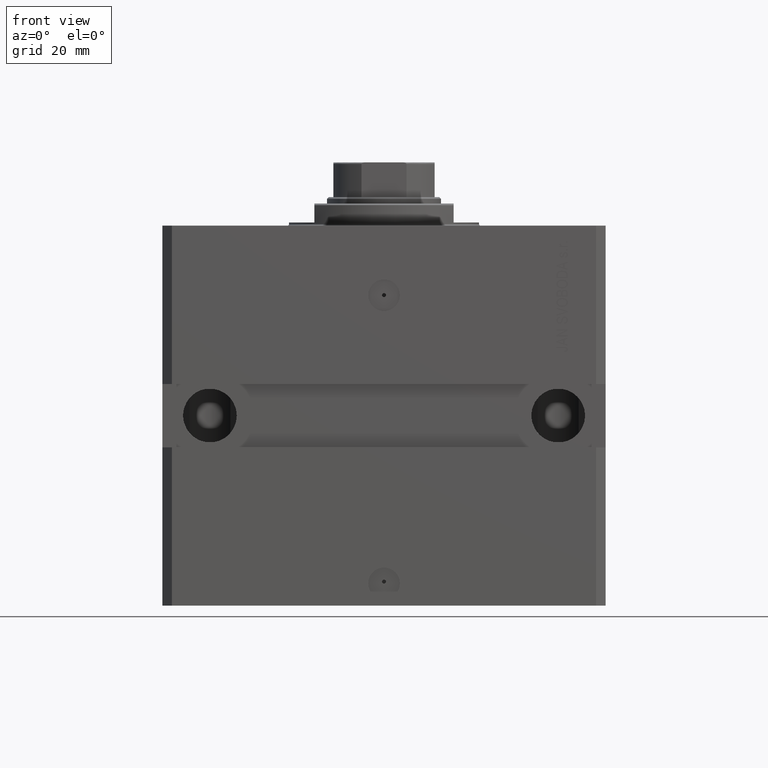
[diagram: clean part render]
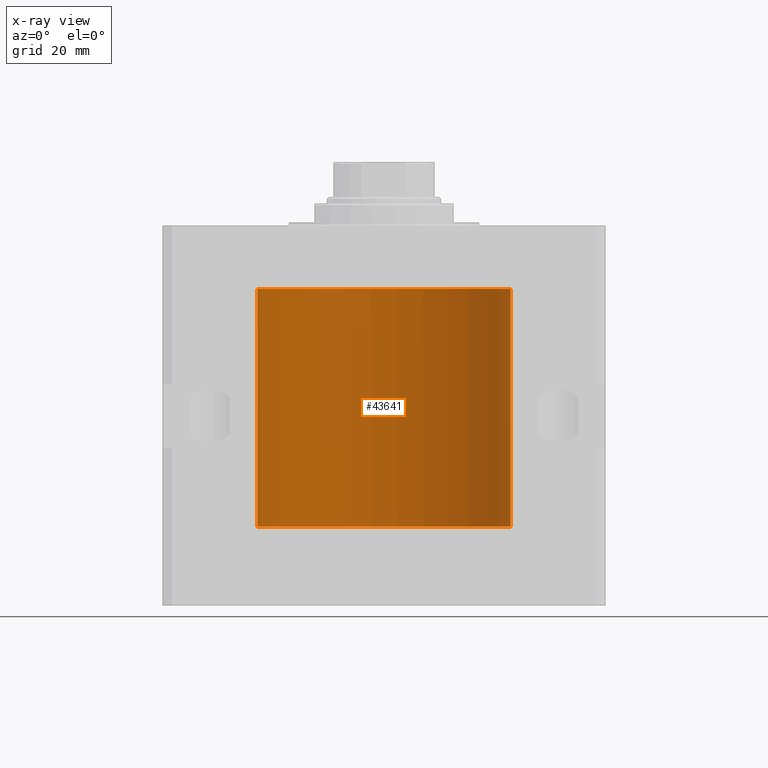
[diagram: x-ray — body ghosted, one internal face saturated and labeled with its STEP entity id]
A machine part, front view, then the same camera in x-ray: the body is ghosted and one INTERNAL B-rep face — a face not visible from any outside direction — is saturated and labeled: STEP entity #43641.
In plain terms, the highlighted cylindrical surface (partial cylindrical patch) has radius 40 mm, axis along (0, 0, 1).
Its self-contained STEP definition (entity closure, byte-faithful):
#165 = B_SPLINE_CURVE_WITH_KNOTS ( 'NONE', 3,
 ( #4626, #15990, #586, #37864, #4532, #41324 ),
 .UNSPECIFIED., .F., .F.,
 ( 4, 2, 4 ),
 ( 0.0009772540344090913447, 0.001465458787294959039, 0.001953663540180826733 ),
 .UNSPECIFIED. ) ;
#468 = ORIENTED_EDGE ( 'NONE', *, *, #33842, .T. ) ;
#586 = CARTESIAN_POINT ( 'NONE',  ( -39.99884891268878562, 0.3251103027878634033, -94.44131772510861822 ) ) ;
#1760 = ORIENTED_EDGE ( 'NONE', *, *, #47784, .F. ) ;
#1938 = CARTESIAN_POINT ( 'NONE',  ( -39.99973691478699322, 0.1636360998065314876, -34.39126145361714748 ) ) ;
#2078 = AXIS2_PLACEMENT_3D ( 'NONE', #47628, #43939, #29129 ) ;
#3256 = EDGE_LOOP ( 'NONE', ( #40471, #3946, #37030, #14263, #468, #1760, #8169 ) ) ;
#3946 = ORIENTED_EDGE ( 'NONE', *, *, #36492, .T. ) ;
#4532 = CARTESIAN_POINT ( 'NONE',  ( -39.99511688944039633, 0.6250000000000127676, -94.83492185971167032 ) ) ;
#4626 = CARTESIAN_POINT ( 'NONE',  ( -40.00000000000012790, 9.803334896741571174E-13, -94.37499999999168665 ) ) ;
#5304 = LINE ( 'NONE', #35407, #28836 ) ;
#8169 = ORIENTED_EDGE ( 'NONE', *, *, #36092, .T. ) ;
#8315 = FACE_OUTER_BOUND ( 'NONE', #3256, .T. ) ;
#8880 = CARTESIAN_POINT ( 'NONE',  ( -39.99628330279644928, 0.5573335244821722156, -34.67349122557948249 ) ) ;
#11124 = DIRECTION ( 'NONE',  ( -0.000000000000000000, -0.000000000000000000, 1.000000000000000000 ) ) ;
#12314 = CARTESIAN_POINT ( 'NONE',  ( -40.00000000000012790, 9.803334896741571174E-13, -94.37499999999168665 ) ) ;
#12792 = DIRECTION ( 'NONE',  ( 0.000000000000000000, 0.000000000000000000, 1.000000000000000000 ) ) ;
#12821 = CARTESIAN_POINT ( 'NONE',  ( -40.00000000000004974, 3.462873814982701370E-13, -35.62500000000321165 ) ) ;
#13077 = CARTESIAN_POINT ( 'NONE',  ( -39.99511688944039633, 0.6250000000000124345, -95.00000000000000000 ) ) ;
#14263 = ORIENTED_EDGE ( 'NONE', *, *, #43242, .T. ) ;
#14648 = VERTEX_POINT ( 'NONE', #21282 ) ;
#15990 = CARTESIAN_POINT ( 'NONE',  ( -39.99999999999998579, 0.1629608811977192317, -94.37500000000035527 ) ) ;
#17009 = CARTESIAN_POINT ( 'NONE',  ( -39.99999999999999289, 0.1631654129523948116, -35.62499999999986500 ) ) ;
#17346 = VERTEX_POINT ( 'NONE', #12314 ) ;
#18590 = LINE ( 'NONE', #40536, #43475 ) ;
#19404 = DIRECTION ( 'NONE',  ( -0.000000000000000000, -0.000000000000000000, 1.000000000000000000 ) ) ;
#19441 = CARTESIAN_POINT ( 'NONE',  ( -40.00000000000000000, 4.898587196589413026E-15, -20.00000000000000355 ) ) ;
#20467 = CARTESIAN_POINT ( 'NONE',  ( -39.99511779353280616, 0.6249421451454513221, -34.83671655111833587 ) ) ;
#21282 = CARTESIAN_POINT ( 'NONE',  ( -40.00000000000000000, 1.067655236296513633E-14, -34.37500000000000000 ) ) ;
#22444 = CARTESIAN_POINT ( 'NONE',  ( 40.00000000000000000, 0.000000000000000000, -20.00000000000000355 ) ) ;
#24346 = CARTESIAN_POINT ( 'NONE',  ( 40.00000000000000000, 0.000000000000000000, -95.00000000000000000 ) ) ;
#25694 = AXIS2_PLACEMENT_3D ( 'NONE', #46051, #45097, #48790 ) ;
#25728 = DIRECTION ( 'NONE',  ( -0.000000000000000000, -0.000000000000000000, 1.000000000000000000 ) ) ;
#26681 = AXIS2_PLACEMENT_3D ( 'NONE', #39183, #12792, #27827 ) ;
#27716 = VECTOR ( 'NONE', #11124, 1000.000000000000000 ) ;
#27827 = DIRECTION ( 'NONE',  ( 1.000000000000000000, 0.000000000000000000, 0.000000000000000000 ) ) ;
#28836 = VECTOR ( 'NONE', #19404, 1000.000000000000000 ) ;
#29129 = DIRECTION ( 'NONE',  ( 1.000000000000000000, 0.000000000000000000, 0.000000000000000000 ) ) ;
#30337 = VERTEX_POINT ( 'NONE', #35570 ) ;
#30591 = CIRCLE ( 'NONE', #26681, 40.00000000000000000 ) ;
#31363 = B_SPLINE_CURVE_WITH_KNOTS ( 'NONE', 3,
 ( #38970, #46616, #1938, #38732, #43161, #8880, #20467, #39459, #35739, #32031, #17009, #12821 ),
 .UNSPECIFIED., .F., .F.,
 ( 4, 2, 2, 2, 2, 4 ),
 ( 1.036137471307501474E-18, 0.0002442581846113557891, 0.0004885163692227106023, 0.0009770327384454201205, 0.001465549107668129639, 0.001954065476890838940 ),
 .UNSPECIFIED. ) ;
#31992 = CIRCLE ( 'NONE', #2078, 40.00000000000000000 ) ;
#32031 = CARTESIAN_POINT ( 'NONE',  ( -39.99884667815961592, 0.3253863549934230548, -35.55855380835959778 ) ) ;
#33253 = VERTEX_POINT ( 'NONE', #19441 ) ;
#33305 = CARTESIAN_POINT ( 'NONE',  ( 40.00000000000000000, 0.000000000000000000, -95.00000000000000000 ) ) ;
#33310 = VERTEX_POINT ( 'NONE', #24346 ) ;
#33842 = EDGE_CURVE ( 'NONE', #42207, #33253, #30591, .T. ) ;
#35407 = CARTESIAN_POINT ( 'NONE',  ( -40.00000000000000000, 4.898587196589413026E-15, -95.00000000000000000 ) ) ;
#35570 = CARTESIAN_POINT ( 'NONE',  ( -40.00000000000004974, 3.462873814982701370E-13, -35.62500000000321165 ) ) ;
#35739 = CARTESIAN_POINT ( 'NONE',  ( -39.99626798708276709, 0.5587118831704992461, -35.32511485424845432 ) ) ;
#36092 = EDGE_CURVE ( 'NONE', #14648, #30337, #31363, .T. ) ;
#36492 = EDGE_CURVE ( 'NONE', #17346, #48156, #165, .T. ) ;
#37030 = ORIENTED_EDGE ( 'NONE', *, *, #48567, .F. ) ;
#37864 = CARTESIAN_POINT ( 'NONE',  ( -39.99627192929612107, 0.5584288736112177354, -94.67445463238748005 ) ) ;
#38406 = CYLINDRICAL_SURFACE ( 'NONE', #25694, 40.00000000000000000 ) ;
#38732 = CARTESIAN_POINT ( 'NONE',  ( -39.99883108112248919, 0.3150272514608761787, -34.45401719637956717 ) ) ;
#38970 = CARTESIAN_POINT ( 'NONE',  ( -40.00000000000000000, 1.067655236296513633E-14, -34.37500000000000000 ) ) ;
#39183 = CARTESIAN_POINT ( 'NONE',  ( 0.000000000000000000, 0.000000000000000000, -20.00000000000000355 ) ) ;
#39459 = CARTESIAN_POINT ( 'NONE',  ( -39.99511598657579725, 0.6250577762831023287, -35.16284024614854076 ) ) ;
#40471 = ORIENTED_EDGE ( 'NONE', *, *, #42811, .F. ) ;
#40536 = CARTESIAN_POINT ( 'NONE',  ( -40.00000000000000000, 4.898587196589413026E-15, -95.00000000000000000 ) ) ;
#41324 = CARTESIAN_POINT ( 'NONE',  ( -39.99511688944039633, 0.6250000000000124345, -95.00000000000000000 ) ) ;
#42207 = VERTEX_POINT ( 'NONE', #22444 ) ;
#42811 = EDGE_CURVE ( 'NONE', #17346, #30337, #18590, .T. ) ;
#43161 = CARTESIAN_POINT ( 'NONE',  ( -39.99819482034362039, 0.3843641341271077372, -34.50046008996472580 ) ) ;
#43242 = EDGE_CURVE ( 'NONE', #33310, #42207, #44415, .T. ) ;
#43475 = VECTOR ( 'NONE', #25728, 1000.000000000000000 ) ;
#43641 = ADVANCED_FACE ( 'NONE', ( #8315 ), #38406, .F. ) ;
#43939 = DIRECTION ( 'NONE',  ( 0.000000000000000000, 0.000000000000000000, 1.000000000000000000 ) ) ;
#44415 = LINE ( 'NONE', #33305, #27716 ) ;
#45097 = DIRECTION ( 'NONE',  ( -0.000000000000000000, -0.000000000000000000, 1.000000000000000000 ) ) ;
#46051 = CARTESIAN_POINT ( 'NONE',  ( 0.000000000000000000, 0.000000000000000000, -95.00000000000000000 ) ) ;
#46616 = CARTESIAN_POINT ( 'NONE',  ( -40.00000000000000000, 0.08259175989844856625, -34.37500000000000711 ) ) ;
#47628 = CARTESIAN_POINT ( 'NONE',  ( 0.000000000000000000, 0.000000000000000000, -95.00000000000000000 ) ) ;
#47784 = EDGE_CURVE ( 'NONE', #14648, #33253, #5304, .T. ) ;
#48156 = VERTEX_POINT ( 'NONE', #13077 ) ;
#48567 = EDGE_CURVE ( 'NONE', #33310, #48156, #31992, .T. ) ;
#48790 = DIRECTION ( 'NONE',  ( 1.000000000000000000, 0.000000000000000000, 0.000000000000000000 ) ) ;